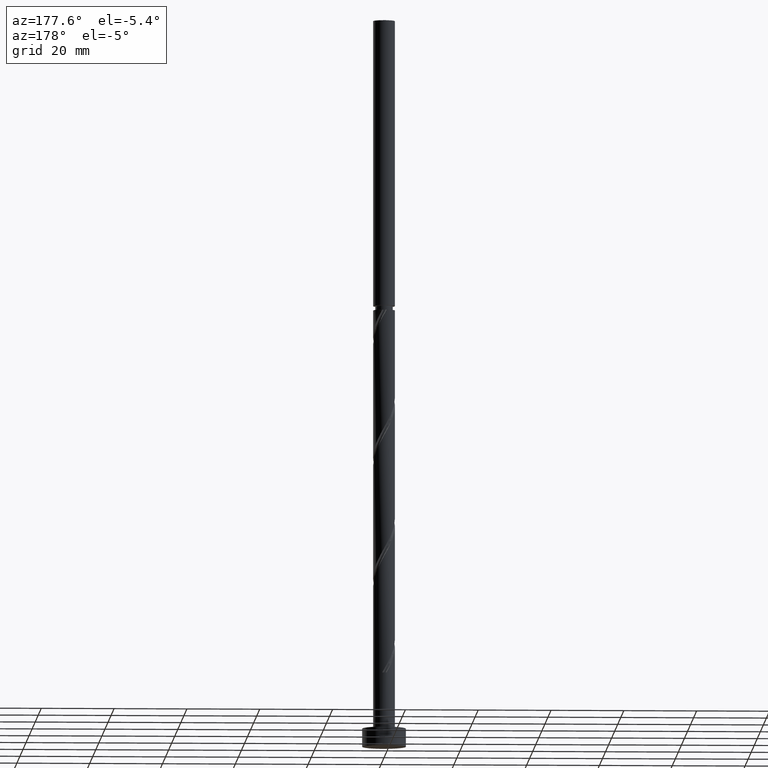
[diagram: clean part render]
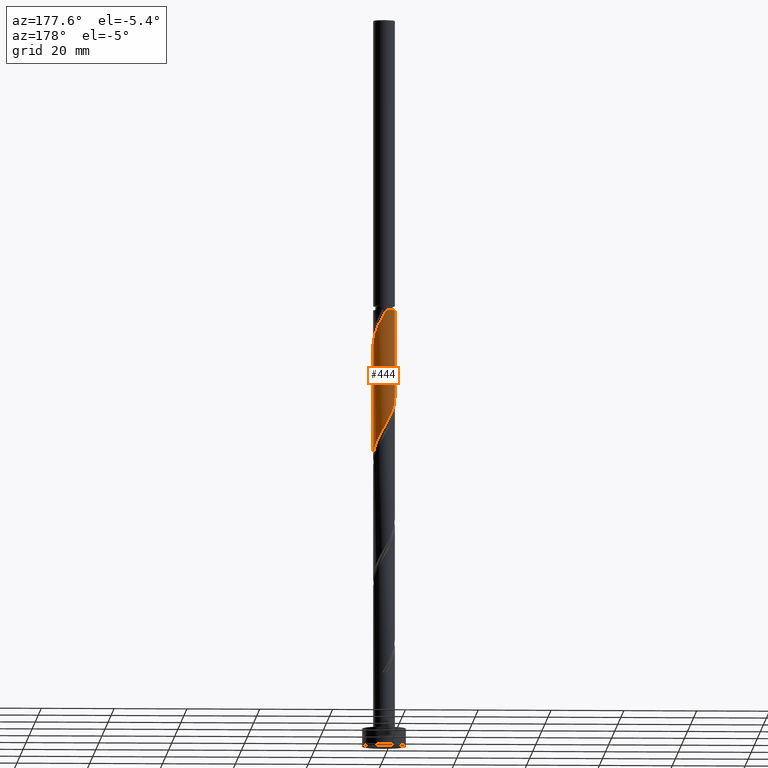
[diagram: same view with one face highlighted and labeled with its STEP entity id]
A machine part, auxiliary view. The second image highlights one B-rep face of the part: STEP entity #444.
In plain terms, the highlighted cylindrical surface (edge-blend (fillet) strip) has radius 3 mm, axis along (-0, -0, -1).
Its self-contained STEP definition (entity closure, byte-faithful):
#28 = VERTEX_POINT ( 'NONE', #1440 ) ;
#36 = CARTESIAN_POINT ( 'NONE',  ( 0.9529893618115802267, 2.844610918258239973, 117.4610740428899192 ) ) ;
#53 = EDGE_CURVE ( 'NONE', #649, #1737, #734, .T. ) ;
#63 = CARTESIAN_POINT ( 'NONE',  ( -1.327489493864648873, 2.719147488601523222, 90.37774070955657635 ) ) ;
#118 = CARTESIAN_POINT ( 'NONE',  ( -0.1842775552007380191, 2.994334948306426547, 88.29440737622327617 ) ) ;
#138 = VERTEX_POINT ( 'NONE', #1178 ) ;
#150 = EDGE_CURVE ( 'NONE', #28, #1737, #917, .T. ) ;
#183 = CARTESIAN_POINT ( 'NONE',  ( -3.000000000000000888, -2.123437390994080431E-15, 96.30241847587777215 ) ) ;
#197 = CARTESIAN_POINT ( 'NONE',  ( 2.940000000000003944, 0.5969924622639724010, 111.9055184873343478 ) ) ;
#198 = CARTESIAN_POINT ( 'NONE',  ( -1.986023542744032477, 2.282915221543594608, 91.76662959844549050 ) ) ;
#218 = VECTOR ( 'NONE', #836, 1000.000000000000000 ) ;
#226 = CARTESIAN_POINT ( 'NONE',  ( 1.987010638188424494, 2.247618455994262465, 84.12774070955659056 ) ) ;
#233 = CARTESIAN_POINT ( 'NONE',  ( 3.000000000000000444, 4.560904255304187567E-15, 79.63575180921110075 ) ) ;
#244 = CARTESIAN_POINT ( 'NONE',  ( 2.282915221543595496, 1.986023542744032033, 83.43329626511219033 ) ) ;
#306 = CARTESIAN_POINT ( 'NONE',  ( -3.000000000000000444, 0.000000000000000000, 200.0000000000000000 ) ) ;
#312 = CARTESIAN_POINT ( 'NONE',  ( -0.5969924622639719569, 2.940000000000002611, 120.2388518206676764 ) ) ;
#330 = CARTESIAN_POINT ( 'NONE',  ( 3.000000000000004441, -1.330886815482195763E-15, 110.8419518321243089 ) ) ;
#352 = VECTOR ( 'NONE', #1312, 1000.000000000000000 ) ;
#368 = CARTESIAN_POINT ( 'NONE',  ( -2.685308910273297212, 1.337578430002084540, 93.84996293177884752 ) ) ;
#375 = CARTESIAN_POINT ( 'NONE',  ( -2.861404451302098639, 0.9840508051709164761, 94.54440737622326196 ) ) ;
#386 = ORIENTED_EDGE ( 'NONE', *, *, #150, .T. ) ;
#426 = ORIENTED_EDGE ( 'NONE', *, *, #53, .F. ) ;
#444 = ADVANCED_FACE ( 'NONE', ( #1258 ), #706, .T. ) ;
#470 = CARTESIAN_POINT ( 'NONE',  ( 0.000000000000000000, 0.000000000000000000, 200.0000000000000000 ) ) ;
#472 = CARTESIAN_POINT ( 'NONE',  ( 2.861404451302104412, 0.9840508051709164761, 112.5999629317788049 ) ) ;
#492 = CARTESIAN_POINT ( 'NONE',  ( 0.9840508051709190296, 2.861404451302097751, 86.21107404288993337 ) ) ;
#500 = CARTESIAN_POINT ( 'NONE',  ( -3.000000000000000888, -2.123437390994080826E-15, 96.30241847587777215 ) ) ;
#512 = CARTESIAN_POINT ( 'NONE',  ( 1.337578430002086316, 2.685308910273296767, 85.51662959844549050 ) ) ;
#630 = CARTESIAN_POINT ( 'NONE',  ( -2.999999999999999556, 0.3015113445777714563, 95.76899210668847218 ) ) ;
#637 = CARTESIAN_POINT ( 'NONE',  ( 2.970074347914949175, 0.5784892297585028098, 80.65551848733434781 ) ) ;
#649 = VERTEX_POINT ( 'NONE', #183 ) ;
#667 = ORIENTED_EDGE ( 'NONE', *, *, #1749, .F. ) ;
#680 = CARTESIAN_POINT ( 'NONE',  ( 0.000000000000000000, 0.000000000000000000, 120.2388518206677048 ) ) ;
#698 = ORIENTED_EDGE ( 'NONE', *, *, #1218, .F. ) ;
#706 = CYLINDRICAL_SURFACE ( 'NONE', #1090, 3.000000000000000444 ) ;
#729 = CIRCLE ( 'NONE', #947, 2.999999999999998224 ) ;
#734 =( BOUNDED_CURVE ( )  B_SPLINE_CURVE ( 2, ( #500, #630, #898, #375, #368, #1321, #1303, #198, #1710, #63, #763, #789, #118, #1674, #1449, #492, #512, #997, #226, #244, #1460, #1566, #889, #637, #858, #1595, #233 ),
 .UNSPECIFIED., .F., .T. ) 
 B_SPLINE_CURVE_WITH_KNOTS ( ( 3, 2, 2, 2, 2, 2, 2, 2, 2, 2, 2, 2, 2, 3 ),
 ( 0.4295317669814464612, 0.4375000000000000000, 0.4479166666666666852, 0.4583333333333333148, 0.4687500000000000000, 0.4791666666666666852, 0.4895833333333333148, 0.5000000000000000000, 0.5104166666666666297, 0.5208333333333333703, 0.5312500000000000000, 0.5416666666666666297, 0.5520833333333333703, 0.5545317669814462391 ),
 .UNSPECIFIED. ) 
 CURVE ( )  GEOMETRIC_REPRESENTATION_ITEM ( )  RATIONAL_B_SPLINE_CURVE ( ( 0.9062941362546321766, 0.9031415850403368140, 0.9090909090909118362, 0.9013135103398304260, 0.9090909090909118362, 0.9013135103398304260, 0.9090909090909118362, 0.9013135103398304260, 0.9090909090909118362, 0.9013135103398304260, 0.9090909090909118362, 0.9013135103398304260, 0.9090909090909118362, 0.9013135103398304260, 0.9090909090909118362, 0.9013135103398304260, 0.9090909090909118362, 0.9013135103398304260, 0.9090909090909118362, 0.9013135103398304260, 0.9090909090909118362, 0.9013135103398304260, 0.9090909090909118362, 0.9013135103398304260, 0.9090909090909118362, 0.9072628343904056702, 0.9062941362546322877 ) ) 
 REPRESENTATION_ITEM ( '' )  );
#736 = CARTESIAN_POINT ( 'NONE',  ( 2.685308910273301652, 1.337578430002084318, 113.2944073762232620 ) ) ;
#737 = CARTESIAN_POINT ( 'NONE',  ( 3.000000000000000444, 3.673940397442060361E-16, 200.0000000000000000 ) ) ;
#763 = CARTESIAN_POINT ( 'NONE',  ( -0.9529893618115768961, 2.844610918258235532, 89.68329626511213348 ) ) ;
#789 = CARTESIAN_POINT ( 'NONE',  ( -0.5784892297585048082, 2.970074347914948287, 88.98885182066769062 ) ) ;
#832 = CARTESIAN_POINT ( 'NONE',  ( 1.327489493864653092, 2.719147488601527218, 116.7666295984454621 ) ) ;
#836 = DIRECTION ( 'NONE',  ( -0.000000000000000000, -0.000000000000000000, -1.000000000000000000 ) ) ;
#858 = CARTESIAN_POINT ( 'NONE',  ( 2.994334948306425659, 0.1842775552007366591, 79.96107404288993337 ) ) ;
#889 = CARTESIAN_POINT ( 'NONE',  ( 2.844610918258237309, 0.9529893618115752307, 81.34996293177881910 ) ) ;
#898 = CARTESIAN_POINT ( 'NONE',  ( -2.939999999999999947, 0.5969924622639726230, 95.23885182066771904 ) ) ;
#917 = LINE ( 'NONE', #737, #352 ) ;
#947 = AXIS2_PLACEMENT_3D ( 'NONE', #680, #1741, #1323 ) ;
#997 = CARTESIAN_POINT ( 'NONE',  ( 1.691106054833253269, 2.509213369244494007, 84.82218515400106185 ) ) ;
#1090 = AXIS2_PLACEMENT_3D ( 'NONE', #470, #1248, #1266 ) ;
#1109 = CARTESIAN_POINT ( 'NONE',  ( 2.247618455994269127, 1.987010638188424050, 114.6832962651121477 ) ) ;
#1137 = CARTESIAN_POINT ( 'NONE',  ( 0.1842775552007413498, 2.994334948306429212, 118.8499629317788191 ) ) ;
#1178 = CARTESIAN_POINT ( 'NONE',  ( -0.5969924622639718459, 2.940000000000002611, 120.2388518206676764 ) ) ;
#1218 = EDGE_CURVE ( 'NONE', #1243, #649, #1512, .T. ) ;
#1242 = CARTESIAN_POINT ( 'NONE',  ( -0.2099341193570253283, 3.018595548697905695, 119.5444073762232335 ) ) ;
#1243 = VERTEX_POINT ( 'NONE', #1377 ) ;
#1248 = DIRECTION ( 'NONE',  ( -0.000000000000000000, -0.000000000000000000, -1.000000000000000000 ) ) ;
#1253 = ORIENTED_EDGE ( 'NONE', *, *, #1507, .T. ) ;
#1258 = FACE_OUTER_BOUND ( 'NONE', #1261, .T. ) ;
#1261 = EDGE_LOOP ( 'NONE', ( #667, #386, #426, #698, #1253 ) ) ;
#1266 = DIRECTION ( 'NONE',  ( -1.000000000000000000, 0.000000000000000000, 0.000000000000000000 ) ) ;
#1268 = CARTESIAN_POINT ( 'NONE',  ( 1.986023542744038028, 2.282915221543595941, 115.3777407095565763 ) ) ;
#1303 = CARTESIAN_POINT ( 'NONE',  ( -2.247618455994263353, 1.987010638188423606, 92.46107404288994758 ) ) ;
#1312 = DIRECTION ( 'NONE',  ( -0.000000000000000000, -0.000000000000000000, -1.000000000000000000 ) ) ;
#1321 = CARTESIAN_POINT ( 'NONE',  ( -2.509213369244495340, 1.691106054833252159, 93.15551848733436202 ) ) ;
#1323 = DIRECTION ( 'NONE',  ( -1.000000000000000000, 0.000000000000000000, 0.000000000000000000 ) ) ;
#1372 = CARTESIAN_POINT ( 'NONE',  ( 0.5784892297585080279, 2.970074347914953172, 118.1555184873343336 ) ) ;
#1377 = CARTESIAN_POINT ( 'NONE',  ( -2.999999999999998224, 0.000000000000000000, 120.2388518206677048 ) ) ;
#1400 = CARTESIAN_POINT ( 'NONE',  ( 3.000000000000000444, 4.560904255304187567E-15, 79.63575180921110075 ) ) ;
#1440 = CARTESIAN_POINT ( 'NONE',  ( 3.000000000000004885, -1.330886815482195763E-15, 110.8419518321243089 ) ) ;
#1449 = CARTESIAN_POINT ( 'NONE',  ( 0.5969924622639732892, 2.939999999999999947, 86.90551848733439044 ) ) ;
#1460 = CARTESIAN_POINT ( 'NONE',  ( 2.501031355072560025, 1.656756518304340231, 82.73885182066770483 ) ) ;
#1507 = EDGE_CURVE ( 'NONE', #1243, #138, #729, .T. ) ;
#1508 = CARTESIAN_POINT ( 'NONE',  ( 2.509213369244500225, 1.691106054833252159, 113.9888518206676764 ) ) ;
#1512 = LINE ( 'NONE', #306, #218 ) ;
#1530 =( BOUNDED_CURVE ( )  B_SPLINE_CURVE ( 2, ( #330, #1645, #197, #472, #736, #1508, #1109, #1268, #1654, #832, #36, #1372, #1137, #1242, #312 ),
 .UNSPECIFIED., .F., .T. ) 
 B_SPLINE_CURVE_WITH_KNOTS ( ( 3, 2, 2, 2, 2, 2, 2, 3 ),
 ( 0.6795317669814463502, 0.6875000000000000000, 0.6979166666666667407, 0.7083333333333332593, 0.7187500000000000000, 0.7291666666666667407, 0.7395833333333332593, 0.7500000000000000000 ),
 .UNSPECIFIED. ) 
 CURVE ( )  GEOMETRIC_REPRESENTATION_ITEM ( )  RATIONAL_B_SPLINE_CURVE ( ( 0.9062941362546388380, 0.9031415850403433643, 0.9090909090909184975, 0.9013135103398369763, 0.9090909090909184975, 0.9013135103398369763, 0.9090909090909184975, 0.9013135103398369763, 0.9090909090909184975, 0.9013135103398369763, 0.9090909090909184975, 0.9013135103398369763, 0.9090909090909184975, 0.9013135103398369763, 0.9090909090909184975 ) ) 
 REPRESENTATION_ITEM ( '' )  );
#1566 = CARTESIAN_POINT ( 'NONE',  ( 2.719147488601524110, 1.327489493864646874, 82.04440737622329038 ) ) ;
#1595 = CARTESIAN_POINT ( 'NONE',  ( 3.000000000000000888, 0.09222585497302165924, 79.79891549723924982 ) ) ;
#1645 = CARTESIAN_POINT ( 'NONE',  ( 3.000000000000003997, 0.3015113445777660717, 111.3753782013135663 ) ) ;
#1654 = CARTESIAN_POINT ( 'NONE',  ( 1.656756518304344450, 2.501031355072561357, 116.0721851540010476 ) ) ;
#1674 = CARTESIAN_POINT ( 'NONE',  ( 0.2099341193570286590, 3.018595548697901254, 87.59996293177880489 ) ) ;
#1710 = CARTESIAN_POINT ( 'NONE',  ( -1.656756518304341119, 2.501031355072559581, 91.07218515400100500 ) ) ;
#1737 = VERTEX_POINT ( 'NONE', #1400 ) ;
#1741 = DIRECTION ( 'NONE',  ( -0.000000000000000000, -0.000000000000000000, -1.000000000000000000 ) ) ;
#1749 = EDGE_CURVE ( 'NONE', #28, #138, #1530, .T. ) ;